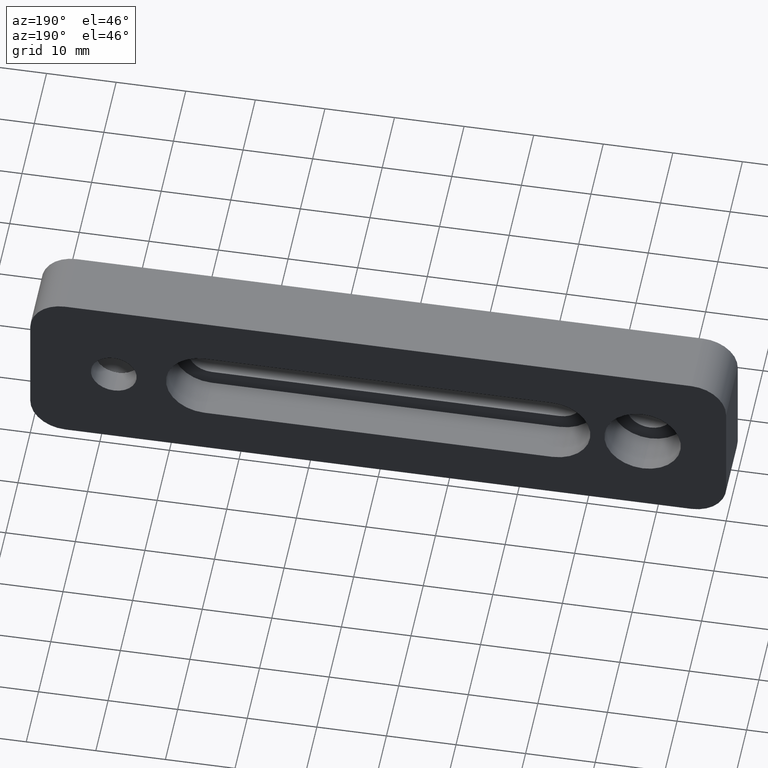
[diagram: clean part render]
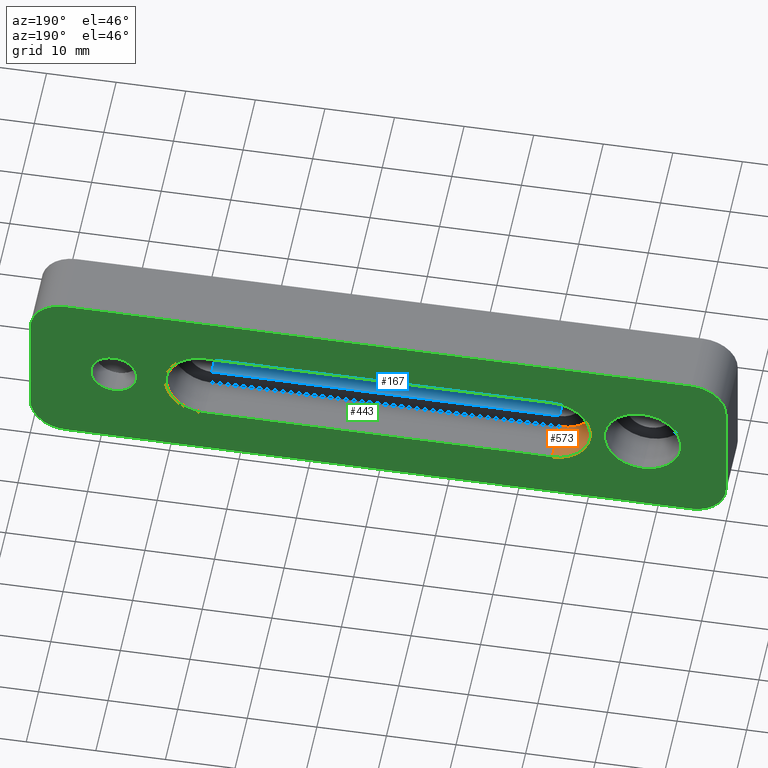
[diagram: same view with three faces highlighted in distinct colors, each labeled with its STEP entity id]
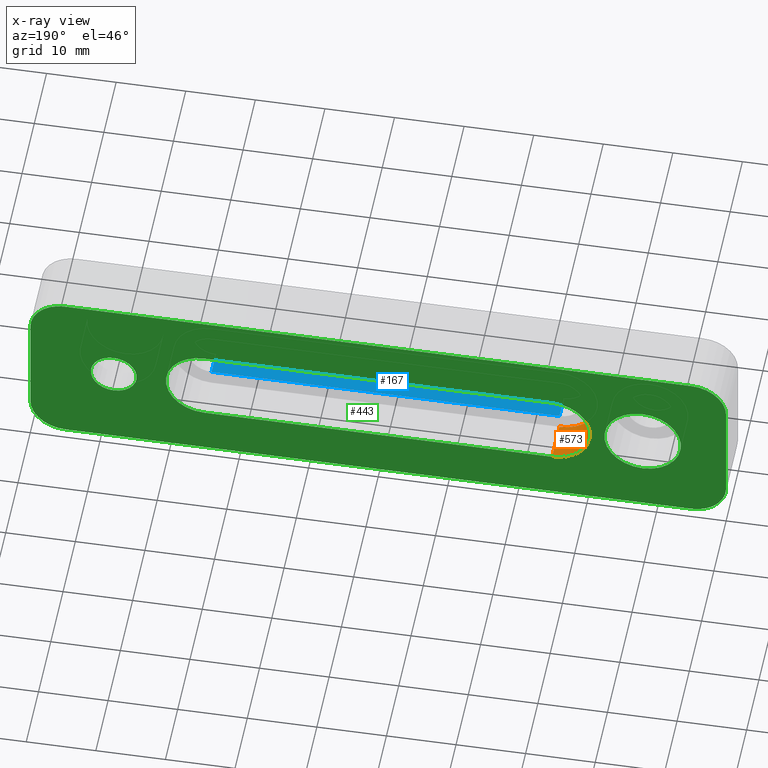
[diagram: x-ray of the same camera — body ghosted, the three highlighted faces saturated]
A machine part, auxiliary view with three faces highlighted in distinct colors.
The next image is the same camera in x-ray (body ghosted, the three faces saturated) — at least one of them is partly hidden behind the body in this view.
Their STEP definitions:

[orange] entity #573 — the highlighted cylindrical surface (partial cylindrical patch) has radius 5.5 mm, axis along (-0, 1, -0).
#4 = FACE_OUTER_BOUND ( 'NONE', #225, .T. ) ;
#27 = EDGE_CURVE ( 'NONE', #546, #620, #676, .T. ) ;
#51 = AXIS2_PLACEMENT_3D ( 'NONE', #901, #520, #544 ) ;
#69 = EDGE_CURVE ( 'NONE', #546, #272, #822, .T. ) ;
#83 = VECTOR ( 'NONE', #607, 1000.000000000000000 ) ;
#103 = VECTOR ( 'NONE', #525, 1000.000000000000000 ) ;
#107 = LINE ( 'NONE', #234, #83 ) ;
#113 = DIRECTION ( 'NONE',  ( 0.0000000000000000000, 0.0000000000000000000, 1.000000000000000000 ) ) ;
#132 = VERTEX_POINT ( 'NONE', #437 ) ;
#142 = DIRECTION ( 'NONE',  ( -0.0000000000000000000, 1.000000000000000000, -0.0000000000000000000 ) ) ;
#211 = CARTESIAN_POINT ( 'NONE',  ( -25.00000000000000000, 0.0000000000000000000, -5.499999999999997300 ) ) ;
#225 = EDGE_LOOP ( 'NONE', ( #390, #927, #503, #278 ) ) ;
#234 = CARTESIAN_POINT ( 'NONE',  ( -25.00000000000000000, 4.000000000000000000, 5.499999999999999100 ) ) ;
#272 = VERTEX_POINT ( 'NONE', #350 ) ;
#278 = ORIENTED_EDGE ( 'NONE', *, *, #27, .F. ) ;
#344 = CARTESIAN_POINT ( 'NONE',  ( -25.00000000000000000, -6.000000000000000000, 6.027989040367472400E-015 ) ) ;
#346 = EDGE_CURVE ( 'NONE', #620, #132, #494, .T. ) ;
#350 = CARTESIAN_POINT ( 'NONE',  ( -25.00000000000000000, 0.0000000000000000000, 5.499999999999999100 ) ) ;
#358 = CYLINDRICAL_SURFACE ( 'NONE', #51, 5.499999999999998200 ) ;
#390 = ORIENTED_EDGE ( 'NONE', *, *, #69, .T. ) ;
#436 = AXIS2_PLACEMENT_3D ( 'NONE', #922, #142, #113 ) ;
#437 = CARTESIAN_POINT ( 'NONE',  ( -25.00000000000000000, -6.000000000000000000, 5.499999999999999100 ) ) ;
#462 = CARTESIAN_POINT ( 'NONE',  ( -25.00000000000000000, 4.000000000000000000, -5.499999999999997300 ) ) ;
#494 = CIRCLE ( 'NONE', #815, 5.499999999999998200 ) ;
#503 = ORIENTED_EDGE ( 'NONE', *, *, #346, .F. ) ;
#520 = DIRECTION ( 'NONE',  ( -0.0000000000000000000, 1.000000000000000000, -0.0000000000000000000 ) ) ;
#525 = DIRECTION ( 'NONE',  ( 0.0000000000000000000, -1.000000000000000000, 0.0000000000000000000 ) ) ;
#544 = DIRECTION ( 'NONE',  ( 0.0000000000000000000, 0.0000000000000000000, 1.000000000000000000 ) ) ;
#546 = VERTEX_POINT ( 'NONE', #211 ) ;
#573 = ADVANCED_FACE ( 'NONE', ( #4 ), #358, .F. ) ;
#597 = DIRECTION ( 'NONE',  ( -0.0000000000000000000, 1.000000000000000000, -0.0000000000000000000 ) ) ;
#607 = DIRECTION ( 'NONE',  ( 0.0000000000000000000, -1.000000000000000000, 0.0000000000000000000 ) ) ;
#616 = CARTESIAN_POINT ( 'NONE',  ( -25.00000000000000000, -6.000000000000000000, -5.499999999999997300 ) ) ;
#620 = VERTEX_POINT ( 'NONE', #616 ) ;
#676 = LINE ( 'NONE', #462, #103 ) ;
#736 = EDGE_CURVE ( 'NONE', #272, #132, #107, .T. ) ;
#760 = DIRECTION ( 'NONE',  ( 0.0000000000000000000, 0.0000000000000000000, 1.000000000000000000 ) ) ;
#815 = AXIS2_PLACEMENT_3D ( 'NONE', #344, #597, #760 ) ;
#822 = CIRCLE ( 'NONE', #436, 5.499999999999998200 ) ;
#901 = CARTESIAN_POINT ( 'NONE',  ( -25.00000000000000000, 0.0000000000000000000, 6.027989040367472400E-015 ) ) ;
#922 = CARTESIAN_POINT ( 'NONE',  ( -25.00000000000000000, 0.0000000000000000000, 6.027989040367472400E-015 ) ) ;
#927 = ORIENTED_EDGE ( 'NONE', *, *, #736, .T. ) ;

[blue] entity #167 — the highlighted planar face has unit normal (-0, 0, -1).
#34 = CARTESIAN_POINT ( 'NONE',  ( -25.00000000000000000, -9.500000000000000000, -3.299999999999988700 ) ) ;
#46 = CARTESIAN_POINT ( 'NONE',  ( 25.00000000000000000, -9.500000000000000000, -3.299999999999995800 ) ) ;
#74 = VERTEX_POINT ( 'NONE', #687 ) ;
#77 = ORIENTED_EDGE ( 'NONE', *, *, #205, .T. ) ;
#84 = DIRECTION ( 'NONE',  ( -1.000000000000000000, 0.0000000000000000000, 1.387778780781445700E-016 ) ) ;
#91 = AXIS2_PLACEMENT_3D ( 'NONE', #177, #311, #308 ) ;
#101 = ORIENTED_EDGE ( 'NONE', *, *, #339, .F. ) ;
#109 = DIRECTION ( 'NONE',  ( -0.0000000000000000000, 1.000000000000000000, -0.0000000000000000000 ) ) ;
#167 = ADVANCED_FACE ( 'NONE', ( #824 ), #936, .F. ) ;
#177 = CARTESIAN_POINT ( 'NONE',  ( 25.00000000000000000, -9.500000000000000000, -3.299999999999995800 ) ) ;
#178 = ORIENTED_EDGE ( 'NONE', *, *, #563, .F. ) ;
#205 = EDGE_CURVE ( 'NONE', #289, #894, #252, .T. ) ;
#252 = LINE ( 'NONE', #891, #408 ) ;
#256 = DIRECTION ( 'NONE',  ( 1.000000000000000000, 0.0000000000000000000, -1.387778780781445700E-016 ) ) ;
#289 = VERTEX_POINT ( 'NONE', #46 ) ;
#306 = VECTOR ( 'NONE', #84, 1000.000000000000000 ) ;
#308 = DIRECTION ( 'NONE',  ( -1.000000000000000000, 0.0000000000000000000, 1.387778780781445700E-016 ) ) ;
#311 = DIRECTION ( 'NONE',  ( -1.387778780781445700E-016, 0.0000000000000000000, -1.000000000000000000 ) ) ;
#313 = EDGE_LOOP ( 'NONE', ( #77, #178, #604, #101 ) ) ;
#339 = EDGE_CURVE ( 'NONE', #289, #818, #885, .T. ) ;
#349 = VECTOR ( 'NONE', #109, 1000.000000000000000 ) ;
#408 = VECTOR ( 'NONE', #795, 1000.000000000000000 ) ;
#442 = LINE ( 'NONE', #772, #468 ) ;
#468 = VECTOR ( 'NONE', #256, 1000.000000000000000 ) ;
#495 = CARTESIAN_POINT ( 'NONE',  ( -25.00000000000000000, -9.500000000000000000, -3.299999999999988700 ) ) ;
#541 = LINE ( 'NONE', #34, #349 ) ;
#563 = EDGE_CURVE ( 'NONE', #74, #894, #442, .T. ) ;
#593 = CARTESIAN_POINT ( 'NONE',  ( 25.00000000000000000, -6.000000000000000000, -3.299999999999995800 ) ) ;
#604 = ORIENTED_EDGE ( 'NONE', *, *, #851, .F. ) ;
#687 = CARTESIAN_POINT ( 'NONE',  ( -25.00000000000000000, -6.000000000000000000, -3.299999999999988700 ) ) ;
#772 = CARTESIAN_POINT ( 'NONE',  ( -21.70000000000000300, -6.000000000000000000, -3.299999999999989200 ) ) ;
#795 = DIRECTION ( 'NONE',  ( -0.0000000000000000000, 1.000000000000000000, -0.0000000000000000000 ) ) ;
#818 = VERTEX_POINT ( 'NONE', #495 ) ;
#824 = FACE_OUTER_BOUND ( 'NONE', #313, .T. ) ;
#850 = CARTESIAN_POINT ( 'NONE',  ( 25.00000000000000000, -9.500000000000000000, -3.299999999999995800 ) ) ;
#851 = EDGE_CURVE ( 'NONE', #818, #74, #541, .T. ) ;
#885 = LINE ( 'NONE', #850, #306 ) ;
#891 = CARTESIAN_POINT ( 'NONE',  ( 25.00000000000000000, -9.500000000000000000, -3.299999999999995800 ) ) ;
#894 = VERTEX_POINT ( 'NONE', #593 ) ;
#936 = PLANE ( 'NONE',  #91 ) ;

[green] entity #443 — the highlighted planar face has unit normal (0, 1, -0).
#5 = CARTESIAN_POINT ( 'NONE',  ( -49.99999999999999300, 0.0000000000000000000, -2.312964634635743200E-014 ) ) ;
#6 = CARTESIAN_POINT ( 'NONE',  ( -45.00000000000000700, 0.0000000000000000000, -7.499999999999999100 ) ) ;
#10 = AXIS2_PLACEMENT_3D ( 'NONE', #245, #751, #199 ) ;
#12 = VERTEX_POINT ( 'NONE', #592 ) ;
#15 = EDGE_CURVE ( 'NONE', #155, #272, #506, .T. ) ;
#22 = VERTEX_POINT ( 'NONE', #331 ) ;
#28 = AXIS2_PLACEMENT_3D ( 'NONE', #646, #793, #374 ) ;
#43 = DIRECTION ( 'NONE',  ( 0.0000000000000000000, 1.000000000000000000, -0.0000000000000000000 ) ) ;
#47 = DIRECTION ( 'NONE',  ( 0.0000000000000000000, 1.000000000000000000, -0.0000000000000000000 ) ) ;
#63 = DIRECTION ( 'NONE',  ( 0.0000000000000000000, 0.0000000000000000000, -1.000000000000000000 ) ) ;
#64 = ORIENTED_EDGE ( 'NONE', *, *, #840, .T. ) ;
#65 = FACE_BOUND ( 'NONE', #202, .T. ) ;
#69 = EDGE_CURVE ( 'NONE', #546, #272, #822, .T. ) ;
#80 = DIRECTION ( 'NONE',  ( 0.0000000000000000000, 0.0000000000000000000, 1.000000000000000000 ) ) ;
#104 = EDGE_CURVE ( 'NONE', #513, #222, #430, .T. ) ;
#110 = EDGE_LOOP ( 'NONE', ( #675, #305 ) ) ;
#113 = DIRECTION ( 'NONE',  ( 0.0000000000000000000, 0.0000000000000000000, 1.000000000000000000 ) ) ;
#121 = CARTESIAN_POINT ( 'NONE',  ( 50.00000000000000700, 0.0000000000000000000, 7.500000000000000900 ) ) ;
#123 = EDGE_CURVE ( 'NONE', #513, #651, #603, .T. ) ;
#131 = CARTESIAN_POINT ( 'NONE',  ( 45.00000000000000700, 0.0000000000000000000, -7.499999999999999100 ) ) ;
#135 = ORIENTED_EDGE ( 'NONE', *, *, #505, .T. ) ;
#136 = CARTESIAN_POINT ( 'NONE',  ( 45.00000000000001400, 0.0000000000000000000, 12.50000000000000000 ) ) ;
#142 = DIRECTION ( 'NONE',  ( -0.0000000000000000000, 1.000000000000000000, -0.0000000000000000000 ) ) ;
#150 = CIRCLE ( 'NONE', #900, 4.999999999999993800 ) ;
#153 = PLANE ( 'NONE',  #360 ) ;
#155 = VERTEX_POINT ( 'NONE', #578 ) ;
#161 = EDGE_CURVE ( 'NONE', #399, #566, #844, .T. ) ;
#165 = VECTOR ( 'NONE', #321, 1000.000000000000000 ) ;
#172 = ORIENTED_EDGE ( 'NONE', *, *, #104, .F. ) ;
#184 = CIRCLE ( 'NONE', #668, 5.000000000000003600 ) ;
#188 = CARTESIAN_POINT ( 'NONE',  ( 0.0000000000000000000, 0.0000000000000000000, -5.499999999999997300 ) ) ;
#193 = EDGE_LOOP ( 'NONE', ( #172, #699, #64, #579, #438, #135, #449, #258 ) ) ;
#197 = VERTEX_POINT ( 'NONE', #319 ) ;
#199 = DIRECTION ( 'NONE',  ( 0.0000000000000000000, 0.0000000000000000000, -1.000000000000000000 ) ) ;
#202 = EDGE_LOOP ( 'NONE', ( #746, #333, #688, #452 ) ) ;
#209 = CARTESIAN_POINT ( 'NONE',  ( -50.00000000000000000, 0.0000000000000000000, 7.499999999999999100 ) ) ;
#211 = CARTESIAN_POINT ( 'NONE',  ( -25.00000000000000000, 0.0000000000000000000, -5.499999999999997300 ) ) ;
#212 = FACE_BOUND ( 'NONE', #110, .T. ) ;
#215 = DIRECTION ( 'NONE',  ( 0.0000000000000000000, 0.0000000000000000000, 1.000000000000000000 ) ) ;
#222 = VERTEX_POINT ( 'NONE', #726 ) ;
#228 = DIRECTION ( 'NONE',  ( 0.0000000000000000000, 1.000000000000000000, -0.0000000000000000000 ) ) ;
#232 = DIRECTION ( 'NONE',  ( -1.000000000000000000, 0.0000000000000000000, 0.0000000000000000000 ) ) ;
#239 = FACE_BOUND ( 'NONE', #376, .T. ) ;
#245 = CARTESIAN_POINT ( 'NONE',  ( 38.00000000000000000, 0.0000000000000000000, 0.0000000000000000000 ) ) ;
#248 = VECTOR ( 'NONE', #423, 1000.000000000000000 ) ;
#249 = AXIS2_PLACEMENT_3D ( 'NONE', #694, #611, #63 ) ;
#255 = EDGE_CURVE ( 'NONE', #662, #197, #370, .T. ) ;
#258 = ORIENTED_EDGE ( 'NONE', *, *, #644, .T. ) ;
#272 = VERTEX_POINT ( 'NONE', #350 ) ;
#296 = EDGE_CURVE ( 'NONE', #797, #662, #184, .T. ) ;
#298 = DIRECTION ( 'NONE',  ( 0.0000000000000000000, 1.000000000000000000, -0.0000000000000000000 ) ) ;
#301 = EDGE_CURVE ( 'NONE', #546, #12, #348, .T. ) ;
#303 = CARTESIAN_POINT ( 'NONE',  ( -45.00000000000000700, 0.0000000000000000000, 7.499999999999999100 ) ) ;
#305 = ORIENTED_EDGE ( 'NONE', *, *, #161, .F. ) ;
#309 = CARTESIAN_POINT ( 'NONE',  ( 0.0000000000000000000, 0.0000000000000000000, 5.499999999999999100 ) ) ;
#317 = DIRECTION ( 'NONE',  ( -0.0000000000000000000, 1.000000000000000000, -0.0000000000000000000 ) ) ;
#318 = VECTOR ( 'NONE', #232, 1000.000000000000000 ) ;
#319 = CARTESIAN_POINT ( 'NONE',  ( 50.00000000000000700, 0.0000000000000000000, -7.499999999999999100 ) ) ;
#321 = DIRECTION ( 'NONE',  ( 1.000000000000000000, -0.0000000000000000000, 0.0000000000000000000 ) ) ;
#331 = CARTESIAN_POINT ( 'NONE',  ( 45.00000000000000700, 0.0000000000000000000, -12.49999999999999600 ) ) ;
#333 = ORIENTED_EDGE ( 'NONE', *, *, #15, .T. ) ;
#342 = VECTOR ( 'NONE', #445, 1000.000000000000000 ) ;
#347 = ORIENTED_EDGE ( 'NONE', *, *, #667, .T. ) ;
#348 = LINE ( 'NONE', #188, #907 ) ;
#350 = CARTESIAN_POINT ( 'NONE',  ( -25.00000000000000000, 0.0000000000000000000, 5.499999999999999100 ) ) ;
#355 = CIRCLE ( 'NONE', #448, 5.000000000000000900 ) ;
#360 = AXIS2_PLACEMENT_3D ( 'NONE', #498, #298, #215 ) ;
#362 = CARTESIAN_POINT ( 'NONE',  ( -38.00000000000000000, -3.851859888774471700E-031, -5.499999999999998200 ) ) ;
#370 = LINE ( 'NONE', #487, #928 ) ;
#374 = DIRECTION ( 'NONE',  ( 0.0000000000000000000, 0.0000000000000000000, 1.000000000000000000 ) ) ;
#376 = EDGE_LOOP ( 'NONE', ( #347, #744 ) ) ;
#382 = CARTESIAN_POINT ( 'NONE',  ( 25.00000000000000000, 0.0000000000000000000, -9.524495536929381000E-017 ) ) ;
#384 = VERTEX_POINT ( 'NONE', #892 ) ;
#399 = VERTEX_POINT ( 'NONE', #362 ) ;
#414 = EDGE_CURVE ( 'NONE', #566, #399, #612, .T. ) ;
#423 = DIRECTION ( 'NONE',  ( 4.625929269271486900E-016, 0.0000000000000000000, -1.000000000000000000 ) ) ;
#430 = LINE ( 'NONE', #5, #248 ) ;
#436 = AXIS2_PLACEMENT_3D ( 'NONE', #922, #142, #113 ) ;
#438 = ORIENTED_EDGE ( 'NONE', *, *, #255, .T. ) ;
#439 = DIRECTION ( 'NONE',  ( 1.000000000000000000, 0.0000000000000000000, 0.0000000000000000000 ) ) ;
#443 = ADVANCED_FACE ( 'NONE', ( #239, #212, #781, #65 ), #153, .T. ) ;
#445 = DIRECTION ( 'NONE',  ( 1.000000000000000000, -0.0000000000000000000, 0.0000000000000000000 ) ) ;
#448 = AXIS2_PLACEMENT_3D ( 'NONE', #131, #47, #478 ) ;
#449 = ORIENTED_EDGE ( 'NONE', *, *, #863, .F. ) ;
#452 = ORIENTED_EDGE ( 'NONE', *, *, #301, .T. ) ;
#478 = DIRECTION ( 'NONE',  ( 0.0000000000000000000, 0.0000000000000000000, 1.000000000000000000 ) ) ;
#483 = DIRECTION ( 'NONE',  ( 0.0000000000000000000, 1.000000000000000000, -0.0000000000000000000 ) ) ;
#487 = CARTESIAN_POINT ( 'NONE',  ( 50.00000000000000700, 0.0000000000000000000, 0.0000000000000000000 ) ) ;
#498 = CARTESIAN_POINT ( 'NONE',  ( 0.0000000000000000000, 0.0000000000000000000, 0.0000000000000000000 ) ) ;
#505 = EDGE_CURVE ( 'NONE', #197, #22, #355, .T. ) ;
#506 = LINE ( 'NONE', #309, #318 ) ;
#513 = VERTEX_POINT ( 'NONE', #209 ) ;
#527 = DIRECTION ( 'NONE',  ( 0.0000000000000000000, 0.0000000000000000000, 1.000000000000000000 ) ) ;
#532 = LINE ( 'NONE', #674, #342 ) ;
#546 = VERTEX_POINT ( 'NONE', #211 ) ;
#558 = LINE ( 'NONE', #887, #165 ) ;
#562 = CARTESIAN_POINT ( 'NONE',  ( 45.00000000000000700, 0.0000000000000000000, 7.500000000000000900 ) ) ;
#566 = VERTEX_POINT ( 'NONE', #685 ) ;
#578 = CARTESIAN_POINT ( 'NONE',  ( 25.00000000000000000, 0.0000000000000000000, 5.499999999999999100 ) ) ;
#579 = ORIENTED_EDGE ( 'NONE', *, *, #296, .T. ) ;
#588 = EDGE_CURVE ( 'NONE', #673, #384, #747, .T. ) ;
#592 = CARTESIAN_POINT ( 'NONE',  ( 25.00000000000000000, 0.0000000000000000000, -5.499999999999998200 ) ) ;
#603 = CIRCLE ( 'NONE', #634, 4.999999999999998200 ) ;
#611 = DIRECTION ( 'NONE',  ( -0.0000000000000000000, -1.000000000000000000, -0.0000000000000000000 ) ) ;
#612 = CIRCLE ( 'NONE', #28, 5.499999999999998200 ) ;
#634 = AXIS2_PLACEMENT_3D ( 'NONE', #303, #228, #80 ) ;
#644 = EDGE_CURVE ( 'NONE', #741, #222, #150, .T. ) ;
#646 = CARTESIAN_POINT ( 'NONE',  ( -38.00000000000000000, -3.851859888774471700E-031, 0.0000000000000000000 ) ) ;
#651 = VERTEX_POINT ( 'NONE', #821 ) ;
#662 = VERTEX_POINT ( 'NONE', #121 ) ;
#667 = EDGE_CURVE ( 'NONE', #384, #673, #872, .T. ) ;
#668 = AXIS2_PLACEMENT_3D ( 'NONE', #562, #483, #873 ) ;
#671 = DIRECTION ( 'NONE',  ( -0.0000000000000000000, 1.000000000000000000, -0.0000000000000000000 ) ) ;
#673 = VERTEX_POINT ( 'NONE', #728 ) ;
#674 = CARTESIAN_POINT ( 'NONE',  ( 0.0000000000000000000, 0.0000000000000000000, -12.49999999999999600 ) ) ;
#675 = ORIENTED_EDGE ( 'NONE', *, *, #414, .F. ) ;
#685 = CARTESIAN_POINT ( 'NONE',  ( -38.00000000000000000, -3.851859888774471700E-031, 5.499999999999998200 ) ) ;
#688 = ORIENTED_EDGE ( 'NONE', *, *, #69, .F. ) ;
#694 = CARTESIAN_POINT ( 'NONE',  ( 38.00000000000000000, 0.0000000000000000000, 0.0000000000000000000 ) ) ;
#699 = ORIENTED_EDGE ( 'NONE', *, *, #123, .T. ) ;
#726 = CARTESIAN_POINT ( 'NONE',  ( -49.99999999999999300, 0.0000000000000000000, -7.499999999999999100 ) ) ;
#728 = CARTESIAN_POINT ( 'NONE',  ( 38.00000000000000000, 0.0000000000000000000, 3.299999999999997200 ) ) ;
#741 = VERTEX_POINT ( 'NONE', #796 ) ;
#744 = ORIENTED_EDGE ( 'NONE', *, *, #588, .T. ) ;
#746 = ORIENTED_EDGE ( 'NONE', *, *, #847, .F. ) ;
#747 = CIRCLE ( 'NONE', #10, 3.299999999999997200 ) ;
#751 = DIRECTION ( 'NONE',  ( -0.0000000000000000000, -1.000000000000000000, -0.0000000000000000000 ) ) ;
#766 = DIRECTION ( 'NONE',  ( 0.0000000000000000000, 0.0000000000000000000, -1.000000000000000000 ) ) ;
#781 = FACE_OUTER_BOUND ( 'NONE', #193, .T. ) ;
#789 = CARTESIAN_POINT ( 'NONE',  ( -38.00000000000000000, -3.851859888774471700E-031, 0.0000000000000000000 ) ) ;
#793 = DIRECTION ( 'NONE',  ( -0.0000000000000000000, 1.000000000000000000, -0.0000000000000000000 ) ) ;
#796 = CARTESIAN_POINT ( 'NONE',  ( -45.00000000000000700, 0.0000000000000000000, -12.49999999999999600 ) ) ;
#797 = VERTEX_POINT ( 'NONE', #136 ) ;
#817 = DIRECTION ( 'NONE',  ( 0.0000000000000000000, 0.0000000000000000000, 1.000000000000000000 ) ) ;
#821 = CARTESIAN_POINT ( 'NONE',  ( -45.00000000000000700, 0.0000000000000000000, 12.50000000000000000 ) ) ;
#822 = CIRCLE ( 'NONE', #436, 5.499999999999998200 ) ;
#840 = EDGE_CURVE ( 'NONE', #651, #797, #558, .T. ) ;
#844 = CIRCLE ( 'NONE', #886, 5.499999999999998200 ) ;
#847 = EDGE_CURVE ( 'NONE', #155, #12, #918, .T. ) ;
#863 = EDGE_CURVE ( 'NONE', #741, #22, #532, .T. ) ;
#872 = CIRCLE ( 'NONE', #249, 3.299999999999997200 ) ;
#873 = DIRECTION ( 'NONE',  ( 0.0000000000000000000, 0.0000000000000000000, 1.000000000000000000 ) ) ;
#881 = AXIS2_PLACEMENT_3D ( 'NONE', #382, #317, #527 ) ;
#886 = AXIS2_PLACEMENT_3D ( 'NONE', #789, #671, #817 ) ;
#887 = CARTESIAN_POINT ( 'NONE',  ( 0.0000000000000000000, 0.0000000000000000000, 12.50000000000000000 ) ) ;
#892 = CARTESIAN_POINT ( 'NONE',  ( 38.00000000000000000, 0.0000000000000000000, -3.299999999999997200 ) ) ;
#897 = DIRECTION ( 'NONE',  ( 0.0000000000000000000, 0.0000000000000000000, 1.000000000000000000 ) ) ;
#900 = AXIS2_PLACEMENT_3D ( 'NONE', #6, #43, #897 ) ;
#907 = VECTOR ( 'NONE', #439, 1000.000000000000000 ) ;
#918 = CIRCLE ( 'NONE', #881, 5.499999999999998200 ) ;
#922 = CARTESIAN_POINT ( 'NONE',  ( -25.00000000000000000, 0.0000000000000000000, 6.027989040367472400E-015 ) ) ;
#928 = VECTOR ( 'NONE', #766, 1000.000000000000000 ) ;